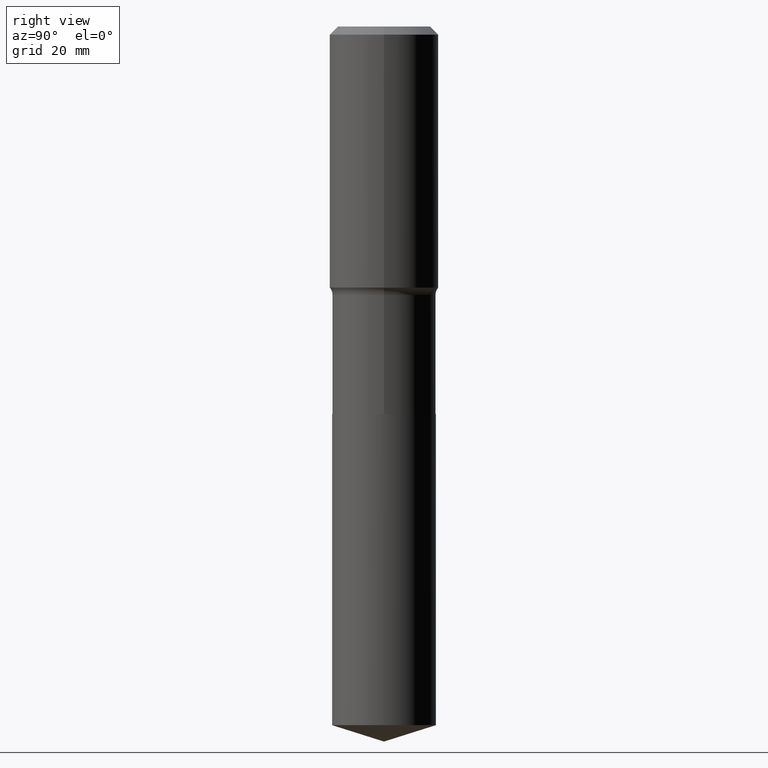
[diagram: clean part render]
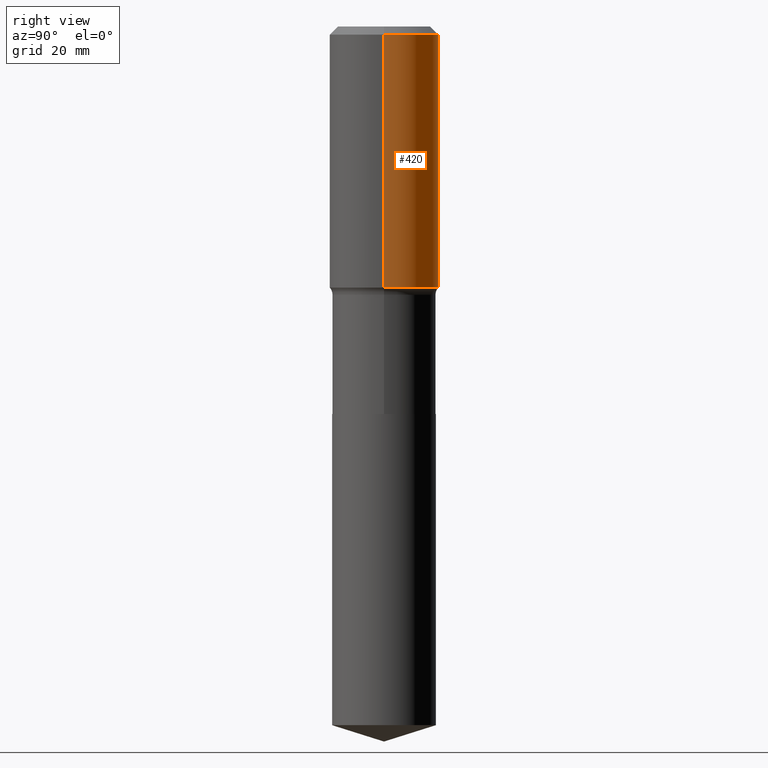
[diagram: same view with one face highlighted and labeled with its STEP entity id]
A machine part, right view. The second image highlights one B-rep face of the part: STEP entity #420.
In plain terms, the highlighted cylindrical surface (partial cylindrical patch) has radius 10 mm, axis along (-0, 0, 1).
Its self-contained STEP definition (entity closure, byte-faithful):
#37 = EDGE_CURVE ( 'NONE', #455, #429, #351, .T. ) ;
#53 = ORIENTED_EDGE ( 'NONE', *, *, #448, .F. ) ;
#105 = CARTESIAN_POINT ( 'NONE',  ( 0.3937000000000001609, -9.324636200712642633E-15, -1.883281952950732974 ) ) ;
#111 = ORIENTED_EDGE ( 'NONE', *, *, #251, .F. ) ;
#151 = EDGE_CURVE ( 'NONE', #429, #386, #243, .T. ) ;
#155 = EDGE_LOOP ( 'NONE', ( #234, #278, #53, #111 ) ) ;
#166 = CARTESIAN_POINT ( 'NONE',  ( 0.000000000000000000, 0.000000000000000000, 0.000000000000000000 ) ) ;
#179 = LINE ( 'NONE', #405, #352 ) ;
#203 = DIRECTION ( 'NONE',  ( 1.000000000000000000, -6.982962677686266711E-15, 0.000000000000000000 ) ) ;
#234 = ORIENTED_EDGE ( 'NONE', *, *, #37, .T. ) ;
#243 = LINE ( 'NONE', #314, #358 ) ;
#244 = CYLINDRICAL_SURFACE ( 'NONE', #472, 0.3937000000000001054 ) ;
#251 = EDGE_CURVE ( 'NONE', #455, #309, #179, .T. ) ;
#271 = CARTESIAN_POINT ( 'NONE',  ( 0.3937000000000000499, -2.955381836670466193E-15, -0.05905500000000032251 ) ) ;
#278 = ORIENTED_EDGE ( 'NONE', *, *, #151, .T. ) ;
#282 = DIRECTION ( 'NONE',  ( -2.445468806185136877E-29, 3.491481338843145188E-15, 1.000000000000000000 ) ) ;
#284 = CARTESIAN_POINT ( 'NONE',  ( 4.605507269192441641E-29, -6.575443794507560205E-15, -1.883281952950732974 ) ) ;
#298 = CARTESIAN_POINT ( 'NONE',  ( 1.444171603492640145E-30, -2.061894304653831000E-16, -0.05905500000000032251 ) ) ;
#302 = CIRCLE ( 'NONE', #389, 0.3937000000000000499 ) ;
#309 = VERTEX_POINT ( 'NONE', #271 ) ;
#314 = CARTESIAN_POINT ( 'NONE',  ( -0.3937000000000001054, 2.797406750687515181E-15, -1.936584745033357016E-29 ) ) ;
#318 = CARTESIAN_POINT ( 'NONE',  ( -0.3937000000000001609, -3.778037043820043841E-15, -1.883281952950732974 ) ) ;
#343 = AXIS2_PLACEMENT_3D ( 'NONE', #284, #473, #203 ) ;
#350 = CARTESIAN_POINT ( 'NONE',  ( -0.3937000000000000499, -5.934098617989565085E-16, -0.05905500000000032251 ) ) ;
#351 = CIRCLE ( 'NONE', #343, 0.3937000000000002164 ) ;
#352 = VECTOR ( 'NONE', #408, 39.37007874015748143 ) ;
#358 = VECTOR ( 'NONE', #282, 39.37007874015748143 ) ;
#371 = DIRECTION ( 'NONE',  ( -2.445468806185136597E-29, 3.491481338843145583E-15, 1.000000000000000000 ) ) ;
#386 = VERTEX_POINT ( 'NONE', #350 ) ;
#389 = AXIS2_PLACEMENT_3D ( 'NONE', #298, #371, #480 ) ;
#395 = DIRECTION ( 'NONE',  ( -2.445468806185136597E-29, 3.491481338843145583E-15, 1.000000000000000000 ) ) ;
#405 = CARTESIAN_POINT ( 'NONE',  ( 0.3937000000000001054, -2.749192406205084005E-15, 1.919750796630860452E-29 ) ) ;
#408 = DIRECTION ( 'NONE',  ( -2.445468806185136877E-29, 3.491481338843145188E-15, 1.000000000000000000 ) ) ;
#420 = ADVANCED_FACE ( 'NONE', ( #475 ), #244, .T. ) ;
#425 = DIRECTION ( 'NONE',  ( 1.000000000000000000, -6.982962677686266711E-15, 4.876176775795935793E-29 ) ) ;
#429 = VERTEX_POINT ( 'NONE', #318 ) ;
#448 = EDGE_CURVE ( 'NONE', #309, #386, #302, .T. ) ;
#455 = VERTEX_POINT ( 'NONE', #105 ) ;
#472 = AXIS2_PLACEMENT_3D ( 'NONE', #166, #395, #425 ) ;
#473 = DIRECTION ( 'NONE',  ( -2.445468806185136597E-29, 3.491481338843145583E-15, 1.000000000000000000 ) ) ;
#475 = FACE_OUTER_BOUND ( 'NONE', #155, .T. ) ;
#480 = DIRECTION ( 'NONE',  ( 1.000000000000000000, -6.982962677686265133E-15, 0.000000000000000000 ) ) ;